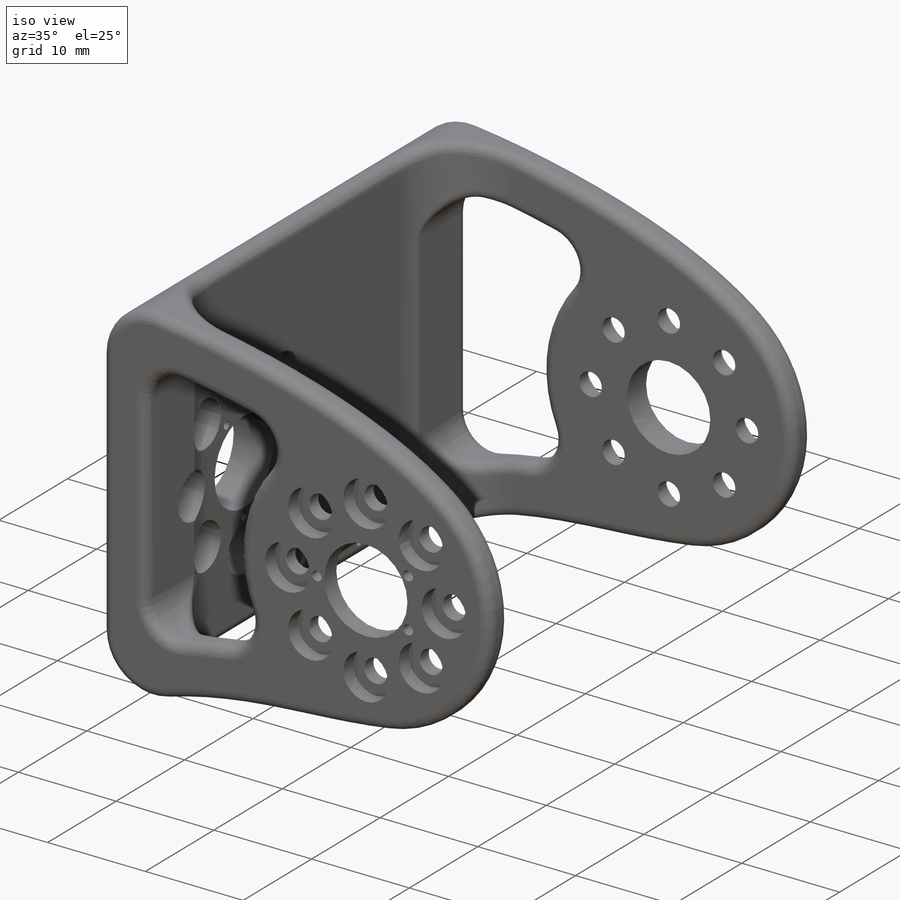
[diagram: iso view]
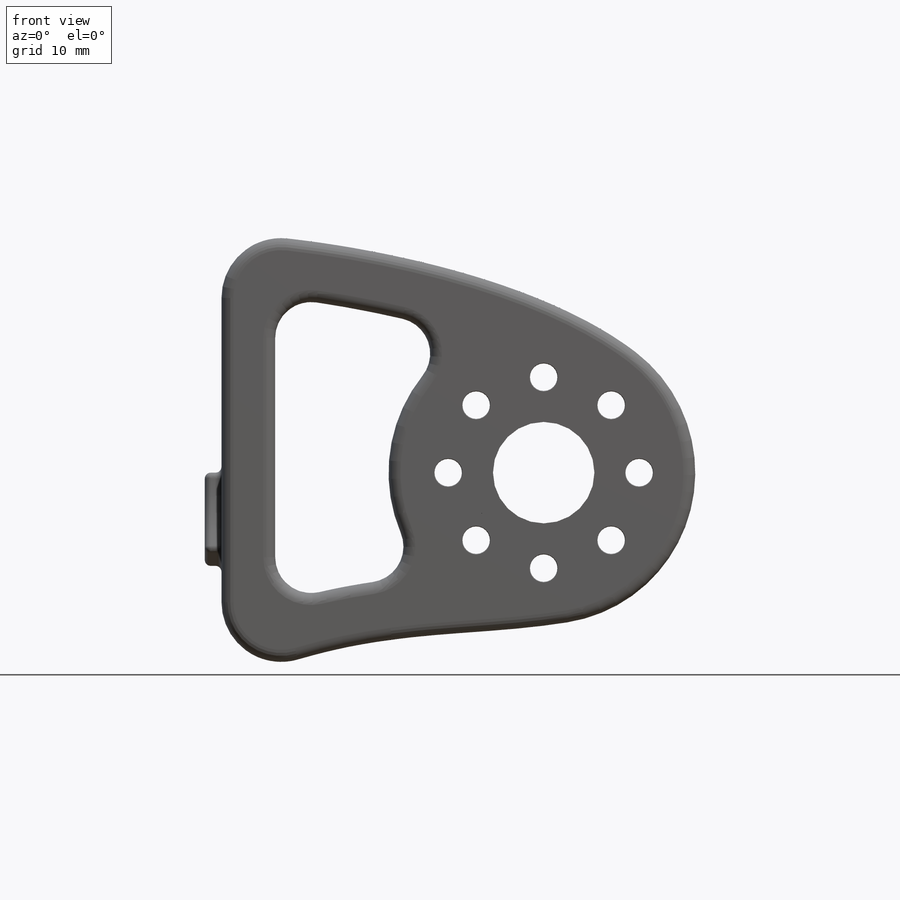
[diagram: front view]
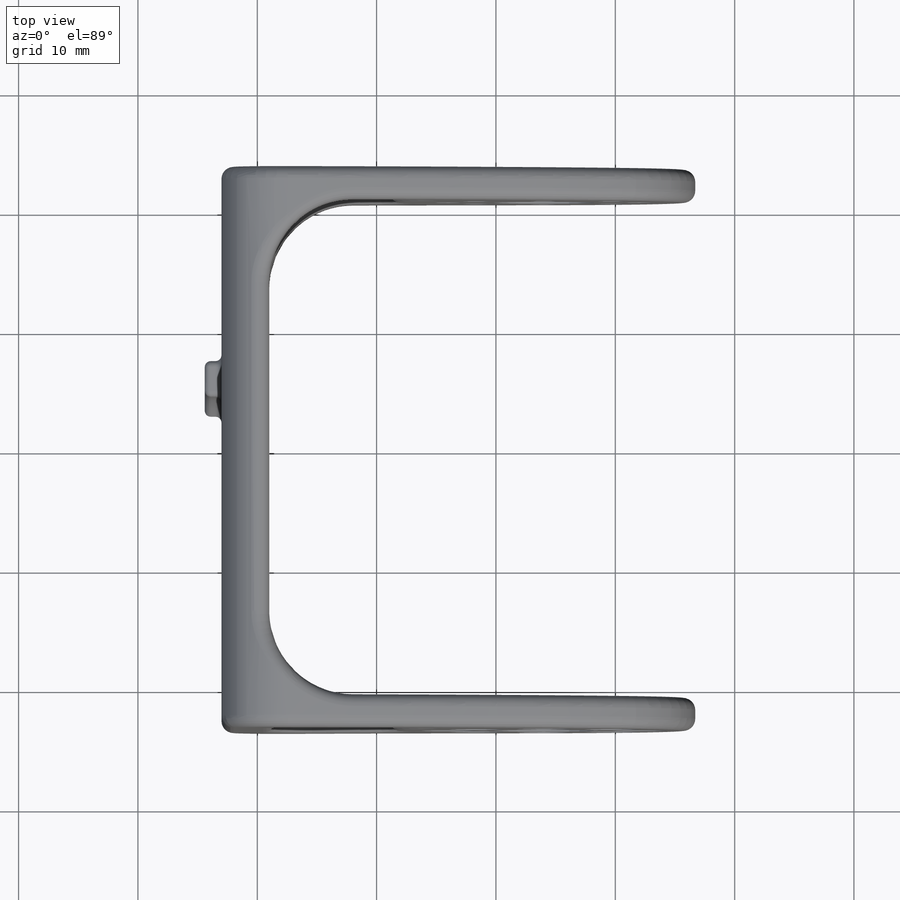
[diagram: top view]
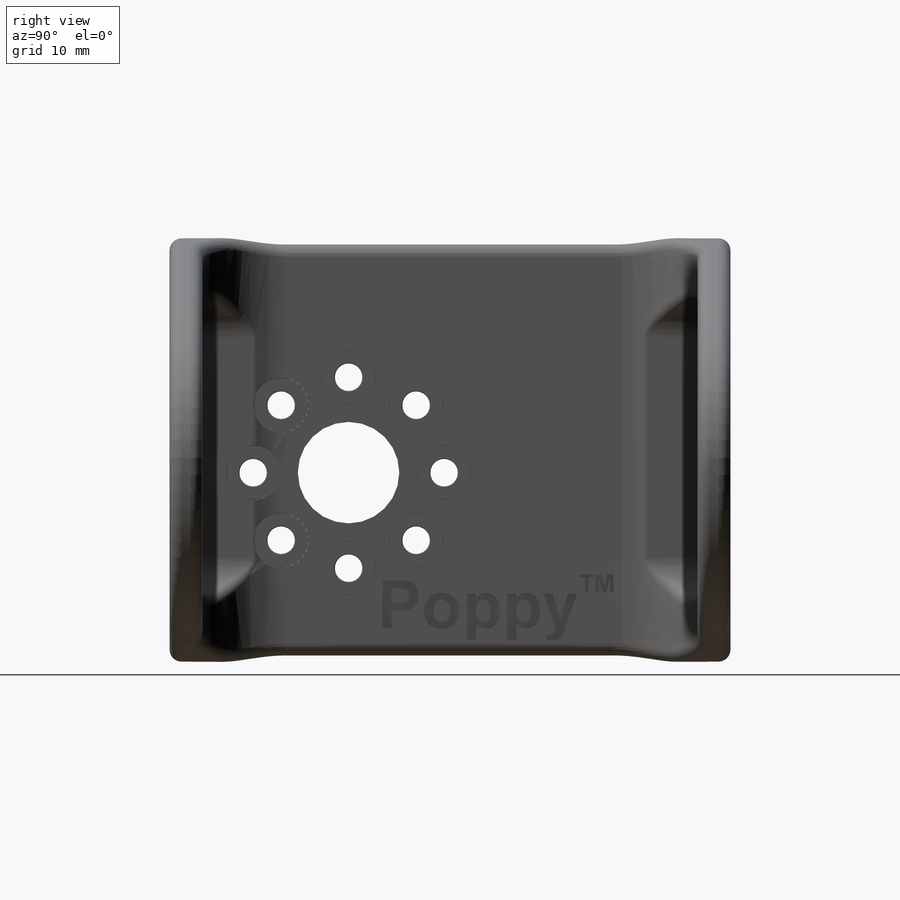
[diagram: right view]
SOLIDWORKS PART (.sldprt)
format: sldprt  version: not decoded by parser v0  size: 2,315,776 bytes
history: native  units: mm
features: sketch x17, cut_extrude x7, fillet x7, plane x5, extrude x2, hole x2, mirror x2, material x1, shell x1, chamfer x1, delete_body x1 (+12 scaffold rows collapsed; 3 parser-record rows omitted)
feature tree (61):
  scaffold x12  (default folders/planes/origin — collapsed)
  material  "Polyamide"
  plane  "Plan de face"
  plane  "Plan de dessus"
  plane  "Plan de droite"
  sketch  "configuration"  dims[D1=27.0mm]
  sketch  "shoulder_x_front"  dims[c1.D1=22.0mm c1.D10=2.7mm c1.D15=16.0mm c1.D16=2.2mm c1.D17=8.0mm c1.D18=22.0mm c1.D2=12.0mm c1.D3=33.0mm c1.D4=35.8mm c1.D5=24.4mm c1.D6=30.0mm c1.D7=17.0mm c1.D8=17.0mm c1.D9=4.5mm c1.D11=17.0mm c1.D12=6.0mm c1.D13=50.6mm c1.D14=35.4mm c2.D18=1.5mm c2.D19=8.0]
  sketch  "shoulder_x_lateral"  dims[c1.D1=15.0mm c1.D2=20.5mm c1.D3=17.5mm c1.D4=4.5mm c1.D5=3.0mm c2.D2=41.0mm]
  plane  "shoulder_y_interface"
  sketch  "shoulder_y_face"  dims[c1.D1=22.0mm c1.D10=2.7mm c1.D15=16.0mm c1.D16=2.2mm c1.D17=8.0mm c1.D18=2.7mm c2.D16=2.0mm c2.D2=12.0mm c2.D3=33.0mm c2.D4=35.8mm c2.D5=24.4mm c2.D6=30.0mm c2.D7=17.0mm c2.D8=17.0mm c2.D9=4.5mm c2.D11=17.0mm c2.D12=6.0mm c2.D13=50.6mm c2.D14=35.4mm c2.D18=8.5mm c2.D19=8.0]
  plane  "shoulder_x_middle_plane"  Offset=0mm
  parser-record x3  (decoder bookkeeping rows leaked as tree rows — omitted from the tree; the rows remain in map.json)
  sketch  "Sketch4"  dims[c1.D1=~27.701575mm c1.D3=25.0mm c2.D1=21.1mm c2.D2=20.3mm c2.D3=~27.065945mm c3.D1=20.0mm c3.D2=18.0mm c3.D3=0.2mm]
  extrude  "Boss-Extrude1"  Depth=47mm
  shell  "Shell1"  Thickness=2.75mm
  hole  "CBORE for M2 Hex Socket Head Cap Screw1"  Diameter=2.3mm Depth=4mm
  sketch  "Sketch6"
  sketch  "Sketch5"  dims[hole-wizard template sketch: 42 standard entries collapsed; hole parameters kept: c12.Thru Hole Depth=4.0mm c12.C'Bore Dia.=4.6mm c12.C'Bore Depth=2.7mm c12.Mid C'Sink Dia.=2.4mm c12.D6=~5.388154mm c12.Mid C'Sink Angle=90.0deg]
  hole  "CBORE for M2 Hex Socket Head Cap Screw2"  Diameter=2.3mm Depth=47mm
  sketch  "Sketch8"
  sketch  "Sketch7"  dims[hole-wizard template sketch: 42 standard entries collapsed; hole parameters kept: c12.Thru Hole Depth=47.0mm c12.C'Bore Dia.=4.6mm c12.C'Bore Depth=1.45mm c12.Mid C'Sink Dia.=2.4mm c12.D6=~5.388154mm c12.Mid C'Sink Angle=90.0deg]
  sketch  "Sketch27"  dims[c1.D1=1.0mm c1.D2=~10.23247mm c1.D4=0.75mm c2.D2=8.0mm c2.D3=~9.878663mm c3.D2=1.0mm c3.D3=5.15mm c3.D4=~9.610031mm c4.D3=5.15mm c4.D4=~9.610031mm c4.D5=~9.610031mm c4.D2=~3.56148mm c5.D2=60.0deg c5.D3=1.0mm]
  cut_extrude  "Cut-Extrude10"  Depth=1mm
  mirror  "Mirror2"
  sketch  "Sketch35"  dims[D1=0.25mm]
  cut_extrude  "Cut-Extrude17"  [1 undecoded]
  sketch  "Sketch10"  dims[D1=0.25mm]
  cut_extrude  "Cut-Extrude4"  [1 undecoded]
  sketch  "Sketch28"  dims[c1.D1=0.8mm c1.D2=~10.23247mm c1.D4=0.75mm c2.D2=8.3mm c2.D3=0.75mm c2.D4=~10.463239mm c2.D5=0.75mm c3.D2=1.0mm c3.D3=5.15mm c3.D4=~9.610031mm c4.D2=5.15mm c4.D3=9.61mm c4.D4=1.0mm c4.D5=~9.610062mm c5.D2=1.0mm c5.D3=~4.496677mm c6.D3=60.0deg]
  cut_extrude  "Cut-Extrude11"  Depth=1mm
  sketch  "Sketch33"  dims[D2=5.0mm D3=4.5mm D1=5.0mm]
  cut_extrude  "Cut-Extrude15"  [1 undecoded]
  sketch  "Sketch21"  dims[c1.D3=8.3mm c1.D1=13.0mm c1.D2=12.0mm c2.D1=13.0mm c2.D2=2.0mm c2.D3=3.0mm c2.D4=1.5mm c3.D1=13.0mm c3.D3=1.5mm c3.D4=~1.988561mm c4.D4=~1.988561mm c5.D4=45.0deg c5.D3=1.5mm c5.D1=13.0mm c5.D2=3.0mm c6.D3=~31.178788mm c7.D3=0.0deg c7.D4=~6.656165mm c8.D4=175.0deg c8.D5=3.0mm c8.D2=3.0mm c8.D3=~2.703633mm c9.D3=30.0deg]
  extrude  "Boss-Extrude2"  Depth=1.4mm
  fillet  "Fillet34"  Radius=5mm
  fillet  "Fillet36"  Radius=0.5mm
  fillet  "Fillet30"  Radius=3mm
  fillet  "Fillet31"  Radius=7mm
  fillet  "Fillet33"  Radius=1mm
  chamfer  "Chamfer1"  Distance=1mm Angle=45deg
  fillet  "Fillet35"  Radius=1mm
  fillet  "Fillet37"  Radius=0.5mm
  sketch  "Sketch37"
  cut_extrude  "Popy_watermark_right"  Depth=1mm
  mirror  "Mirror3"
  delete_body  "Body-Delete1"
  sketch  "Sketch36"
  cut_extrude  "watermark_Poppy_left"  Depth=1mm
decode coverage: 30 of 40 modeling features carry decoded parameters
note: ~ marks probable driven/reference dimensions
note: 3 parameter values undecoded
summary: no parameter record found for 3 features
note: suppression state not decoded; provenance and decode notes live in map.json
